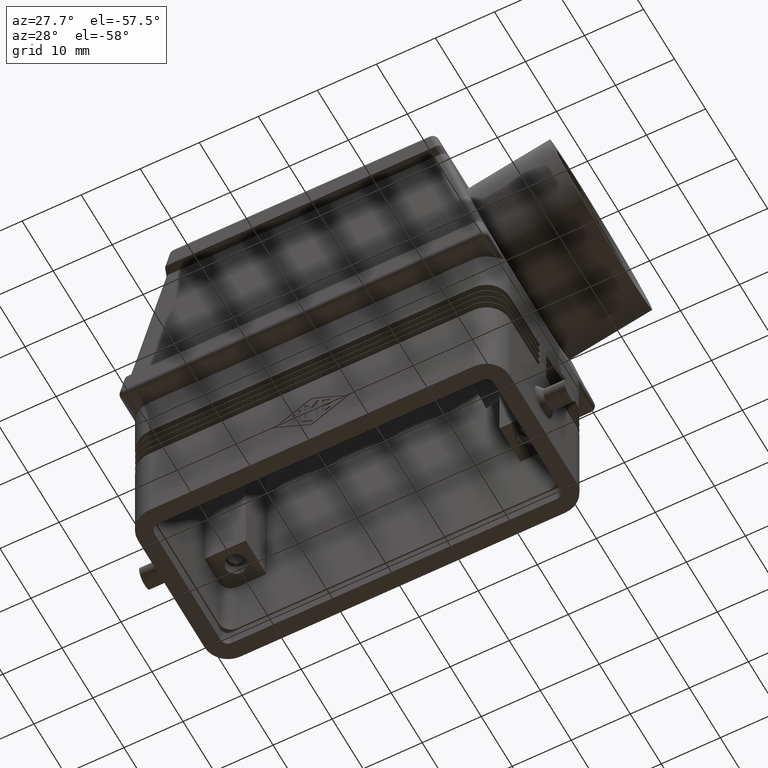
[diagram: clean part render]
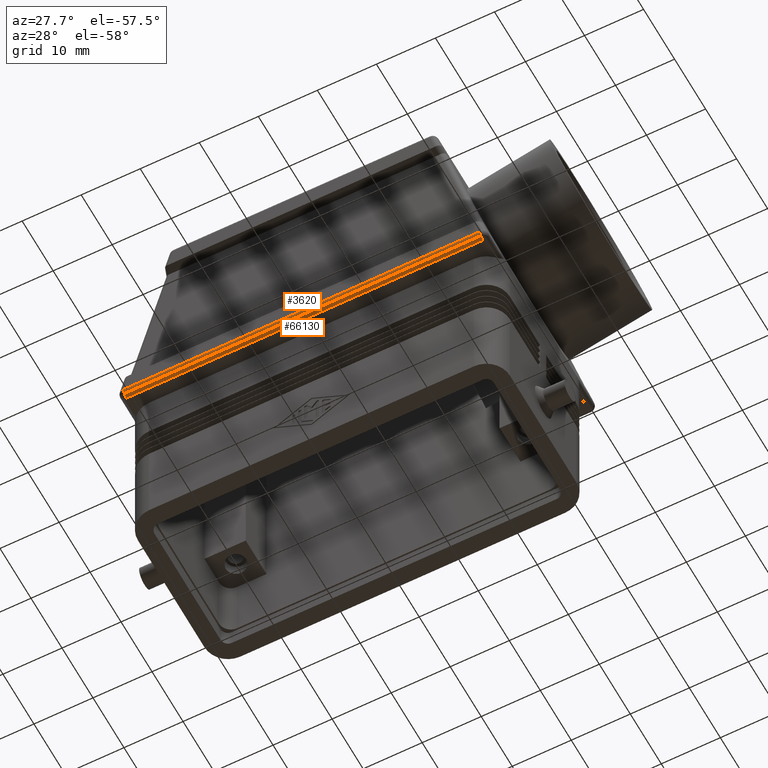
[diagram: same view with one multi-face feature highlighted, each face labeled with its STEP entity id]
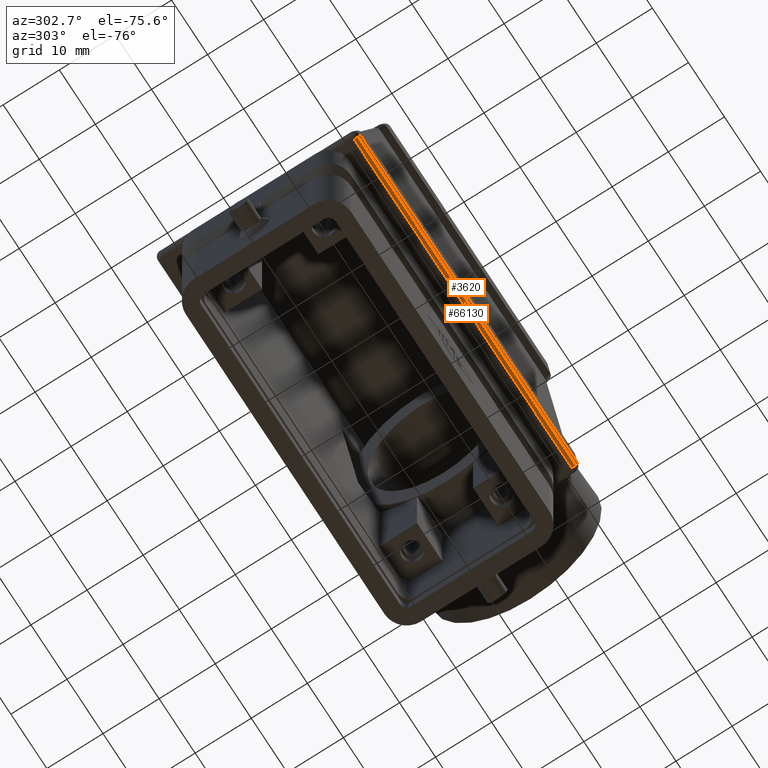
[diagram: same view with one multi-face feature highlighted, each face labeled with its STEP entity id]
A machine part, auxiliary view. The highlighted faces form ONE feature: a constant-radius fillet chain: 2 tangent blend faces with common blend radius 1 mm. The faces share edges in the B-rep.
A second angle (auxiliary view) of the same feature is appended — it is thin or edge-on in the first view.
Their STEP definitions:
[1] entity #66130 (Cylinder):
#3310=CARTESIAN_POINT('',(-30.2056639718257,-17.7071067811866,
30.2928932188135));
#3320=VERTEX_POINT('',#3310);
#3500=CARTESIAN_POINT('',(30.2056639718257,-17.7071067811866,
30.2928932188135));
#3510=VERTEX_POINT('',#3500);
#3540=CARTESIAN_POINT('',(30.2056639718257,-17.7071067811866,
30.2928932188135));
#3550=DIRECTION('',(-1.,0.,0.));
#3560=VECTOR('',#3550,60.4113279436514);
#3570=LINE('',#3540,#3560);
#3580=EDGE_CURVE('',#3510,#3320,#3570,.T.);
#54920=CARTESIAN_POINT('',(-30.2056639718257,-17.,30.));
#54930=VERTEX_POINT('',#54920);
#55060=CARTESIAN_POINT('',(-30.2056639718257,-17.,31.));
#55070=DIRECTION('',(-1.,0.,0.));
#55080=DIRECTION('',(0.,-0.707106781186549,-0.707106781186546));
#55090=AXIS2_PLACEMENT_3D('',#55060,#55070,#55080);
#55100=CIRCLE('',#55090,1.);
#55110=EDGE_CURVE('',#54930,#3320,#55100,.T.);
#55280=CARTESIAN_POINT('',(30.2056639718257,-17.,31.));
#55290=DIRECTION('',(1.,4.440892E-15,4.440892E-15));
#55300=DIRECTION('',(6.28036969543418E-15,-0.707106781186549,
-0.707106781186546));
#55310=AXIS2_PLACEMENT_3D('',#55280,#55290,#55300);
#55320=CIRCLE('',#55310,1.);
#55330=CARTESIAN_POINT('',(30.2056639718257,-17.,30.));
#55340=VERTEX_POINT('',#55330);
#55350=EDGE_CURVE('',#3510,#55340,#55320,.T.);
#65970=CARTESIAN_POINT('',(-15.75,-17.,31.));
#65980=DIRECTION('',(-1.,0.,0.));
#65990=DIRECTION('',(0.,-0.707106781186549,-0.707106781186546));
#66000=AXIS2_PLACEMENT_3D('',#65970,#65980,#65990);
#66010=CYLINDRICAL_SURFACE('',#66000,1.);
#66020=ORIENTED_EDGE('',*,*,#55350,.F.);
#66030=CARTESIAN_POINT('',(-30.2056639718257,-17.,30.));
#66040=DIRECTION('',(1.,0.,0.));
#66050=VECTOR('',#66040,60.4113279436514);
#66060=LINE('',#66030,#66050);
#66070=EDGE_CURVE('',#54930,#55340,#66060,.T.);
#66080=ORIENTED_EDGE('',*,*,#66070,.T.);
#66090=ORIENTED_EDGE('',*,*,#55110,.F.);
#66100=ORIENTED_EDGE('',*,*,#3580,.T.);
#66110=EDGE_LOOP('',(#66100,#66090,#66080,#66020));
#66120=FACE_OUTER_BOUND('',#66110,.T.);
#66130=ADVANCED_FACE('',(#66120),#66010,.T.);
[2] entity #3620 (Cylinder):
#3210=CARTESIAN_POINT('',(-15.75,-17.,31.));
#3220=DIRECTION('',(-1.,0.,0.));
#3230=DIRECTION('',(0.,-0.707106781186549,-0.707106781186546));
#3240=AXIS2_PLACEMENT_3D('',#3210,#3220,#3230);
#3250=CYLINDRICAL_SURFACE('',#3240,1.);
#3260=CARTESIAN_POINT('',(-30.2056639718257,-17.,31.));
#3270=DIRECTION('',(-1.,0.,0.));
#3280=DIRECTION('',(0.,-0.707106781186549,-0.707106781186546));
#3290=AXIS2_PLACEMENT_3D('',#3260,#3270,#3280);
#3300=CIRCLE('',#3290,1.);
#3310=CARTESIAN_POINT('',(-30.2056639718257,-17.7071067811866,
30.2928932188135));
#3320=VERTEX_POINT('',#3310);
#3330=CARTESIAN_POINT('',(-30.2056639718257,-18.,31.));
#3340=VERTEX_POINT('',#3330);
#3350=EDGE_CURVE('',#3320,#3340,#3300,.T.);
#3360=ORIENTED_EDGE('',*,*,#3350,.F.);
#3370=CARTESIAN_POINT('',(30.2056639718257,-18.,31.));
#3380=DIRECTION('',(-1.,0.,0.));
#3390=VECTOR('',#3380,60.4113279436514);
#3400=LINE('',#3370,#3390);
#3410=CARTESIAN_POINT('',(30.2056639718257,-18.,31.));
#3420=VERTEX_POINT('',#3410);
#3430=EDGE_CURVE('',#3420,#3340,#3400,.T.);
#3440=ORIENTED_EDGE('',*,*,#3430,.T.);
#3450=CARTESIAN_POINT('',(30.2056639718257,-17.,31.));
#3460=DIRECTION('',(1.,4.440892E-15,4.440892E-15));
#3470=DIRECTION('',(6.28036969543418E-15,-0.707106781186549,
-0.707106781186546));
#3480=AXIS2_PLACEMENT_3D('',#3450,#3460,#3470);
#3490=CIRCLE('',#3480,1.);
#3500=CARTESIAN_POINT('',(30.2056639718257,-17.7071067811866,
30.2928932188135));
#3510=VERTEX_POINT('',#3500);
#3520=EDGE_CURVE('',#3420,#3510,#3490,.T.);
#3530=ORIENTED_EDGE('',*,*,#3520,.F.);
#3540=CARTESIAN_POINT('',(30.2056639718257,-17.7071067811866,
30.2928932188135));
#3550=DIRECTION('',(-1.,0.,0.));
#3560=VECTOR('',#3550,60.4113279436514);
#3570=LINE('',#3540,#3560);
#3580=EDGE_CURVE('',#3510,#3320,#3570,.T.);
#3590=ORIENTED_EDGE('',*,*,#3580,.F.);
#3600=EDGE_LOOP('',(#3590,#3530,#3440,#3360));
#3610=FACE_OUTER_BOUND('',#3600,.T.);
#3620=ADVANCED_FACE('',(#3610),#3250,.T.);